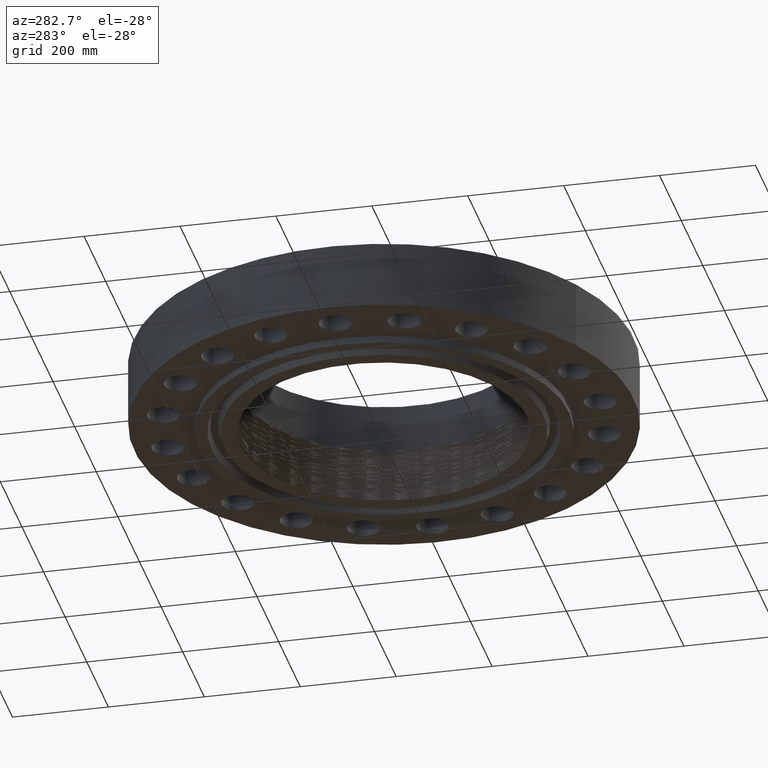
[diagram: clean part render]
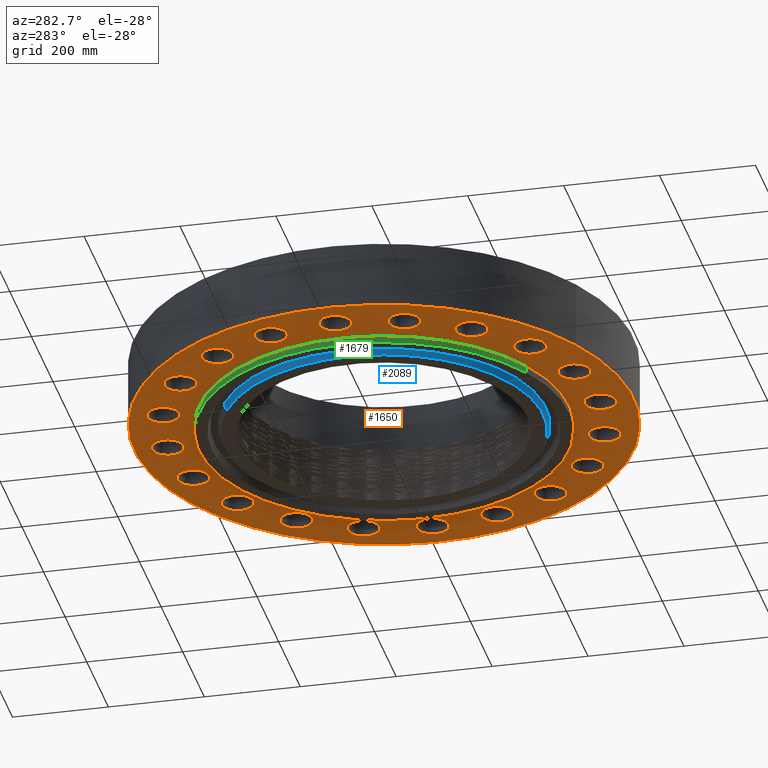
[diagram: same view with three faces highlighted in distinct colors, each labeled with its STEP entity id]
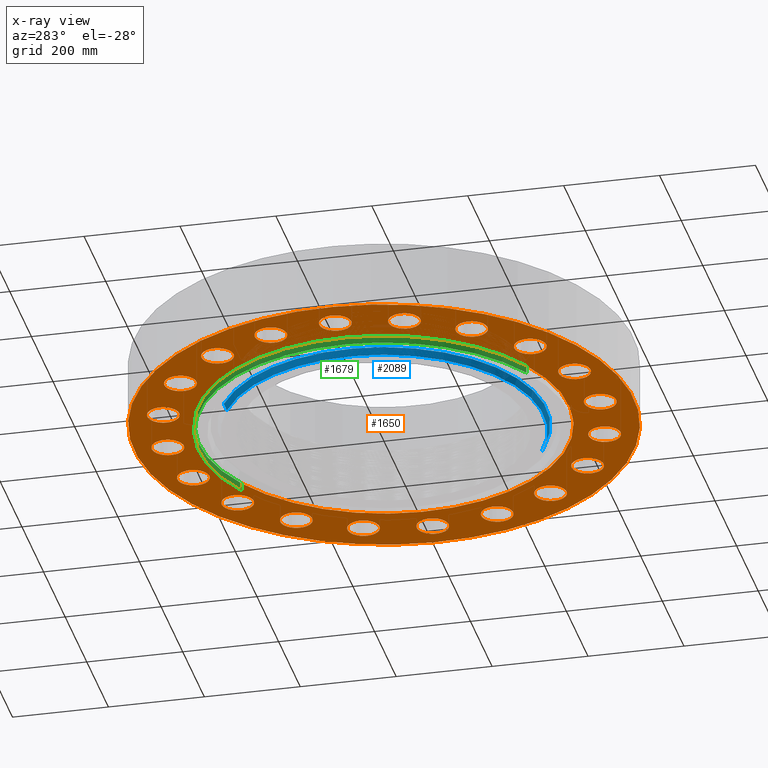
[diagram: x-ray of the same camera — body ghosted, the three highlighted faces saturated]
A machine part, auxiliary view with three faces highlighted in distinct colors.
The next image is the same camera in x-ray (body ghosted, the three faces saturated) — at least one of them is partly hidden behind the body in this view.
Their STEP definitions:

[orange] entity #1650 — the highlighted planar face has unit normal (0, 0, -1).
#448=AXIS2_PLACEMENT_3D('Circle Axis2P3D',#446,#447,$) ;
#474=AXIS2_PLACEMENT_3D('Circle Axis2P3D',#472,#473,$) ;
#505=AXIS2_PLACEMENT_3D('Circle Axis2P3D',#503,#504,$) ;
#531=AXIS2_PLACEMENT_3D('Circle Axis2P3D',#529,#530,$) ;
#562=AXIS2_PLACEMENT_3D('Circle Axis2P3D',#560,#561,$) ;
#588=AXIS2_PLACEMENT_3D('Circle Axis2P3D',#586,#587,$) ;
#619=AXIS2_PLACEMENT_3D('Circle Axis2P3D',#617,#618,$) ;
#645=AXIS2_PLACEMENT_3D('Circle Axis2P3D',#643,#644,$) ;
#676=AXIS2_PLACEMENT_3D('Circle Axis2P3D',#674,#675,$) ;
#702=AXIS2_PLACEMENT_3D('Circle Axis2P3D',#700,#701,$) ;
#733=AXIS2_PLACEMENT_3D('Circle Axis2P3D',#731,#732,$) ;
#759=AXIS2_PLACEMENT_3D('Circle Axis2P3D',#757,#758,$) ;
#790=AXIS2_PLACEMENT_3D('Circle Axis2P3D',#788,#789,$) ;
#816=AXIS2_PLACEMENT_3D('Circle Axis2P3D',#814,#815,$) ;
#847=AXIS2_PLACEMENT_3D('Circle Axis2P3D',#845,#846,$) ;
#873=AXIS2_PLACEMENT_3D('Circle Axis2P3D',#871,#872,$) ;
#904=AXIS2_PLACEMENT_3D('Circle Axis2P3D',#902,#903,$) ;
#930=AXIS2_PLACEMENT_3D('Circle Axis2P3D',#928,#929,$) ;
#961=AXIS2_PLACEMENT_3D('Circle Axis2P3D',#959,#960,$) ;
#987=AXIS2_PLACEMENT_3D('Circle Axis2P3D',#985,#986,$) ;
#1018=AXIS2_PLACEMENT_3D('Circle Axis2P3D',#1016,#1017,$) ;
#1044=AXIS2_PLACEMENT_3D('Circle Axis2P3D',#1042,#1043,$) ;
#1075=AXIS2_PLACEMENT_3D('Circle Axis2P3D',#1073,#1074,$) ;
#1101=AXIS2_PLACEMENT_3D('Circle Axis2P3D',#1099,#1100,$) ;
#1132=AXIS2_PLACEMENT_3D('Circle Axis2P3D',#1130,#1131,$) ;
#1158=AXIS2_PLACEMENT_3D('Circle Axis2P3D',#1156,#1157,$) ;
#1189=AXIS2_PLACEMENT_3D('Circle Axis2P3D',#1187,#1188,$) ;
#1215=AXIS2_PLACEMENT_3D('Circle Axis2P3D',#1213,#1214,$) ;
#1246=AXIS2_PLACEMENT_3D('Circle Axis2P3D',#1244,#1245,$) ;
#1272=AXIS2_PLACEMENT_3D('Circle Axis2P3D',#1270,#1271,$) ;
#1303=AXIS2_PLACEMENT_3D('Circle Axis2P3D',#1301,#1302,$) ;
#1329=AXIS2_PLACEMENT_3D('Circle Axis2P3D',#1327,#1328,$) ;
#1360=AXIS2_PLACEMENT_3D('Circle Axis2P3D',#1358,#1359,$) ;
#1386=AXIS2_PLACEMENT_3D('Circle Axis2P3D',#1384,#1385,$) ;
#1417=AXIS2_PLACEMENT_3D('Circle Axis2P3D',#1415,#1416,$) ;
#1443=AXIS2_PLACEMENT_3D('Circle Axis2P3D',#1441,#1442,$) ;
#1474=AXIS2_PLACEMENT_3D('Circle Axis2P3D',#1472,#1473,$) ;
#1500=AXIS2_PLACEMENT_3D('Circle Axis2P3D',#1498,#1499,$) ;
#1518=AXIS2_PLACEMENT_3D('Plane Axis2P3D',#1515,#1516,#1517) ;
#1522=AXIS2_PLACEMENT_3D('Circle Axis2P3D',#1520,#1521,$) ;
#1531=AXIS2_PLACEMENT_3D('Circle Axis2P3D',#1529,#1530,$) ;
#1540=AXIS2_PLACEMENT_3D('Circle Axis2P3D',#1538,#1539,$) ;
#1549=AXIS2_PLACEMENT_3D('Circle Axis2P3D',#1547,#1548,$) ;
#1558=AXIS2_PLACEMENT_3D('Circle Axis2P3D',#1556,#1557,$) ;
#1567=AXIS2_PLACEMENT_3D('Circle Axis2P3D',#1565,#1566,$) ;
#441=CARTESIAN_POINT('Vertex',(6.38777281745,15.9250526131,0.)) ;
#446=CARTESIAN_POINT('Axis2P3D Location',(5.48505165018,16.8812531643,0.)) ;
#450=CARTESIAN_POINT('Vertex',(4.58233048291,17.8374537155,0.)) ;
#472=CARTESIAN_POINT('Axis2P3D Location',(5.48505165018,16.8812531643,0.)) ;
#498=CARTESIAN_POINT('Vertex',(-1.15402106889,-17.1195554168,0.)) ;
#503=CARTESIAN_POINT('Axis2P3D Location',(1.00563315434E-014,-17.7500000001,0.)) ;
#507=CARTESIAN_POINT('Vertex',(1.15402106889,-18.3804445833,0.)) ;
#529=CARTESIAN_POINT('Axis2P3D Location',(1.00563315434E-014,-17.7500000001,0.)) ;
#555=CARTESIAN_POINT('Vertex',(-4.19269430243,16.6382768574,-3.35689481461E-015)) ;
#560=CARTESIAN_POINT('Axis2P3D Location',(-5.48505165018,16.8812531643,-4.47585975282E-015)) ;
#564=CARTESIAN_POINT('Vertex',(-6.77740899793,17.1242294712,0.)) ;
#586=CARTESIAN_POINT('Axis2P3D Location',(-5.48505165018,16.8812531643,-4.47585975282E-015)) ;
#612=CARTESIAN_POINT('Vertex',(4.19269430243,-16.6382768574,0.)) ;
#617=CARTESIAN_POINT('Axis2P3D Location',(5.48505165018,-16.8812531643,0.)) ;
#621=CARTESIAN_POINT('Vertex',(6.77740899793,-17.1242294712,0.)) ;
#643=CARTESIAN_POINT('Axis2P3D Location',(5.48505165018,-16.8812531643,0.)) ;
#669=CARTESIAN_POINT('Vertex',(-9.1289995432,14.5283278335,0.)) ;
#674=CARTESIAN_POINT('Axis2P3D Location',(-10.4331882282,14.3600516502,0.)) ;
#678=CARTESIAN_POINT('Vertex',(-11.7373769133,14.191775467,0.)) ;
#700=CARTESIAN_POINT('Axis2P3D Location',(-10.4331882282,14.3600516502,0.)) ;
#726=CARTESIAN_POINT('Vertex',(9.1289995432,-14.5283278335,0.)) ;
#731=CARTESIAN_POINT('Axis2P3D Location',(10.4331882282,-14.3600516502,0.)) ;
#735=CARTESIAN_POINT('Vertex',(11.7373769133,-14.191775467,0.)) ;
#757=CARTESIAN_POINT('Axis2P3D Location',(10.4331882282,-14.3600516502,0.)) ;
#783=CARTESIAN_POINT('Vertex',(-13.1716947032,10.9962448564,0.)) ;
#788=CARTESIAN_POINT('Axis2P3D Location',(-14.3600516502,10.4331882282,0.)) ;
#792=CARTESIAN_POINT('Vertex',(-15.5484085972,9.87013160007,0.)) ;
#814=CARTESIAN_POINT('Axis2P3D Location',(-14.3600516502,10.4331882282,0.)) ;
#840=CARTESIAN_POINT('Vertex',(13.1716947032,-10.9962448564,0.)) ;
#845=CARTESIAN_POINT('Axis2P3D Location',(14.3600516502,-10.4331882282,0.)) ;
#849=CARTESIAN_POINT('Vertex',(15.5484085972,-9.87013160007,0.)) ;
#871=CARTESIAN_POINT('Axis2P3D Location',(14.3600516502,-10.4331882282,0.)) ;
#897=CARTESIAN_POINT('Vertex',(-15.9250526131,6.38777281745,-3.35689481461E-015)) ;
#902=CARTESIAN_POINT('Axis2P3D Location',(-16.8812531643,5.48505165018,-4.47585975282E-015)) ;
#906=CARTESIAN_POINT('Vertex',(-17.8374537155,4.58233048291,0.)) ;
#928=CARTESIAN_POINT('Axis2P3D Location',(-16.8812531643,5.48505165018,-4.47585975282E-015)) ;
#954=CARTESIAN_POINT('Vertex',(15.9250526131,-6.38777281745,0.)) ;
#959=CARTESIAN_POINT('Axis2P3D Location',(16.8812531643,-5.48505165018,0.)) ;
#963=CARTESIAN_POINT('Vertex',(17.8374537155,-4.58233048291,0.)) ;
#985=CARTESIAN_POINT('Axis2P3D Location',(16.8812531643,-5.48505165018,0.)) ;
#1011=CARTESIAN_POINT('Vertex',(-17.1195554168,1.15402106889,0.)) ;
#1016=CARTESIAN_POINT('Axis2P3D Location',(-17.7500000001,-1.90257890525E-014,0.)) ;
#1020=CARTESIAN_POINT('Vertex',(-18.3804445833,-1.15402106889,0.)) ;
#1042=CARTESIAN_POINT('Axis2P3D Location',(-17.7500000001,-1.90257890525E-014,0.)) ;
#1068=CARTESIAN_POINT('Vertex',(17.1195554168,-1.15402106889,0.)) ;
#1073=CARTESIAN_POINT('Axis2P3D Location',(17.7500000001,2.79023589527E-015,0.)) ;
#1077=CARTESIAN_POINT('Vertex',(18.3804445833,1.15402106889,0.)) ;
#1099=CARTESIAN_POINT('Axis2P3D Location',(17.7500000001,2.79023589527E-015,0.)) ;
#1125=CARTESIAN_POINT('Vertex',(-16.6382768574,-4.19269430243,-3.35689481461E-015)) ;
#1130=CARTESIAN_POINT('Axis2P3D Location',(-16.8812531643,-5.48505165018,-4.47585975282E-015)) ;
#1134=CARTESIAN_POINT('Vertex',(-17.1242294712,-6.77740899793,0.)) ;
#1156=CARTESIAN_POINT('Axis2P3D Location',(-16.8812531643,-5.48505165018,-4.47585975282E-015)) ;
#1182=CARTESIAN_POINT('Vertex',(16.6382768574,4.19269430243,0.)) ;
#1187=CARTESIAN_POINT('Axis2P3D Location',(16.8812531643,5.48505165018,0.)) ;
#1191=CARTESIAN_POINT('Vertex',(17.1242294712,6.77740899793,0.)) ;
#1213=CARTESIAN_POINT('Axis2P3D Location',(16.8812531643,5.48505165018,0.)) ;
#1239=CARTESIAN_POINT('Vertex',(-14.5283278335,-9.1289995432,0.)) ;
#1244=CARTESIAN_POINT('Axis2P3D Location',(-14.3600516502,-10.4331882282,0.)) ;
#1248=CARTESIAN_POINT('Vertex',(-14.191775467,-11.7373769133,0.)) ;
#1270=CARTESIAN_POINT('Axis2P3D Location',(-14.3600516502,-10.4331882282,0.)) ;
#1296=CARTESIAN_POINT('Vertex',(14.5283278335,9.1289995432,0.)) ;
#1301=CARTESIAN_POINT('Axis2P3D Location',(14.3600516502,10.4331882282,0.)) ;
#1305=CARTESIAN_POINT('Vertex',(14.191775467,11.7373769133,0.)) ;
#1327=CARTESIAN_POINT('Axis2P3D Location',(14.3600516502,10.4331882282,0.)) ;
#1353=CARTESIAN_POINT('Vertex',(-10.9962448564,-13.1716947032,-3.35689481461E-015)) ;
#1358=CARTESIAN_POINT('Axis2P3D Location',(-10.4331882282,-14.3600516502,-4.47585975282E-015)) ;
#1362=CARTESIAN_POINT('Vertex',(-9.87013160007,-15.5484085972,0.)) ;
#1384=CARTESIAN_POINT('Axis2P3D Location',(-10.4331882282,-14.3600516502,-4.47585975282E-015)) ;
#1410=CARTESIAN_POINT('Vertex',(10.9962448564,13.1716947032,-3.35689481461E-015)) ;
#1415=CARTESIAN_POINT('Axis2P3D Location',(10.4331882282,14.3600516502,-4.47585975282E-015)) ;
#1419=CARTESIAN_POINT('Vertex',(9.87013160007,15.5484085972,0.)) ;
#1441=CARTESIAN_POINT('Axis2P3D Location',(10.4331882282,14.3600516502,-4.47585975282E-015)) ;
#1467=CARTESIAN_POINT('Vertex',(-6.38777281745,-15.9250526131,0.)) ;
#1472=CARTESIAN_POINT('Axis2P3D Location',(-5.48505165018,-16.8812531643,0.)) ;
#1476=CARTESIAN_POINT('Vertex',(-4.58233048291,-17.8374537155,0.)) ;
#1498=CARTESIAN_POINT('Axis2P3D Location',(-5.48505165018,-16.8812531643,0.)) ;
#1515=CARTESIAN_POINT('Axis2P3D Location',(0.,15.1875000001,0.)) ;
#1520=CARTESIAN_POINT('Axis2P3D Location',(0.,0.,0.)) ;
#1524=CARTESIAN_POINT('Vertex',(-9.82822354143,-17.9904425188,2.23792987641E-015)) ;
#1526=CARTESIAN_POINT('Vertex',(9.82822354143,17.9904425188,2.23792987641E-015)) ;
#1529=CARTESIAN_POINT('Axis2P3D Location',(0.,0.,0.)) ;
#1538=CARTESIAN_POINT('Axis2P3D Location',(5.59482469102E-016,17.7500000001,0.)) ;
#1542=CARTESIAN_POINT('Vertex',(1.15402106889,17.1195554168,0.)) ;
#1544=CARTESIAN_POINT('Vertex',(-1.15402106889,18.3804445833,0.)) ;
#1547=CARTESIAN_POINT('Axis2P3D Location',(4.19611851827E-016,17.7500000001,0.)) ;
#1556=CARTESIAN_POINT('Axis2P3D Location',(0.,0.,0.)) ;
#1560=CARTESIAN_POINT('Vertex',(7.28127536758,13.3282851588,1.67844740731E-015)) ;
#1562=CARTESIAN_POINT('Vertex',(-7.28127536758,-13.3282851588,1.67844740731E-015)) ;
#1565=CARTESIAN_POINT('Axis2P3D Location',(0.,0.,0.)) ;
#447=DIRECTION('Axis2P3D Direction',(0.,-0.,-0.0393700787402)) ;
#473=DIRECTION('Axis2P3D Direction',(0.,-0.,-0.0393700787402)) ;
#504=DIRECTION('Axis2P3D Direction',(-0.,0.,-0.0393700787402)) ;
#530=DIRECTION('Axis2P3D Direction',(-0.,0.,-0.0393700787402)) ;
#561=DIRECTION('Axis2P3D Direction',(0.,0.,-0.0393700787402)) ;
#587=DIRECTION('Axis2P3D Direction',(0.,0.,-0.0393700787402)) ;
#618=DIRECTION('Axis2P3D Direction',(-0.,0.,-0.0393700787402)) ;
#644=DIRECTION('Axis2P3D Direction',(-0.,0.,-0.0393700787402)) ;
#675=DIRECTION('Axis2P3D Direction',(0.,0.,-0.0393700787402)) ;
#701=DIRECTION('Axis2P3D Direction',(0.,0.,-0.0393700787402)) ;
#732=DIRECTION('Axis2P3D Direction',(-0.,0.,-0.0393700787402)) ;
#758=DIRECTION('Axis2P3D Direction',(-0.,0.,-0.0393700787402)) ;
#789=DIRECTION('Axis2P3D Direction',(0.,0.,-0.0393700787402)) ;
#815=DIRECTION('Axis2P3D Direction',(0.,0.,-0.0393700787402)) ;
#846=DIRECTION('Axis2P3D Direction',(-0.,0.,-0.0393700787402)) ;
#872=DIRECTION('Axis2P3D Direction',(-0.,0.,-0.0393700787402)) ;
#903=DIRECTION('Axis2P3D Direction',(0.,0.,-0.0393700787402)) ;
#929=DIRECTION('Axis2P3D Direction',(0.,0.,-0.0393700787402)) ;
#960=DIRECTION('Axis2P3D Direction',(-0.,0.,-0.0393700787402)) ;
#986=DIRECTION('Axis2P3D Direction',(-0.,0.,-0.0393700787402)) ;
#1017=DIRECTION('Axis2P3D Direction',(0.,0.,-0.0393700787402)) ;
#1043=DIRECTION('Axis2P3D Direction',(0.,0.,-0.0393700787402)) ;
#1074=DIRECTION('Axis2P3D Direction',(0.,-0.,-0.0393700787402)) ;
#1100=DIRECTION('Axis2P3D Direction',(0.,-0.,-0.0393700787402)) ;
#1131=DIRECTION('Axis2P3D Direction',(0.,0.,-0.0393700787402)) ;
#1157=DIRECTION('Axis2P3D Direction',(0.,0.,-0.0393700787402)) ;
#1188=DIRECTION('Axis2P3D Direction',(0.,-0.,-0.0393700787402)) ;
#1214=DIRECTION('Axis2P3D Direction',(0.,-0.,-0.0393700787402)) ;
#1245=DIRECTION('Axis2P3D Direction',(0.,0.,-0.0393700787402)) ;
#1271=DIRECTION('Axis2P3D Direction',(0.,0.,-0.0393700787402)) ;
#1302=DIRECTION('Axis2P3D Direction',(0.,-0.,-0.0393700787402)) ;
#1328=DIRECTION('Axis2P3D Direction',(0.,-0.,-0.0393700787402)) ;
#1359=DIRECTION('Axis2P3D Direction',(0.,0.,-0.0393700787402)) ;
#1385=DIRECTION('Axis2P3D Direction',(0.,0.,-0.0393700787402)) ;
#1416=DIRECTION('Axis2P3D Direction',(0.,-0.,-0.0393700787402)) ;
#1442=DIRECTION('Axis2P3D Direction',(0.,-0.,-0.0393700787402)) ;
#1473=DIRECTION('Axis2P3D Direction',(0.,0.,-0.0393700787402)) ;
#1499=DIRECTION('Axis2P3D Direction',(0.,0.,-0.0393700787402)) ;
#1516=DIRECTION('Axis2P3D Direction',(0.,0.,-0.0393700787402)) ;
#1517=DIRECTION('Axis2P3D XDirection',(0.0393700787402,0.,0.)) ;
#1521=DIRECTION('Axis2P3D Direction',(0.,0.,-0.0393700787402)) ;
#1530=DIRECTION('Axis2P3D Direction',(0.,0.,-0.0393700787402)) ;
#1539=DIRECTION('Axis2P3D Direction',(0.,0.,-0.0393700787402)) ;
#1548=DIRECTION('Axis2P3D Direction',(0.,0.,-0.0393700787402)) ;
#1557=DIRECTION('Axis2P3D Direction',(0.,0.,-0.0393700787402)) ;
#1566=DIRECTION('Axis2P3D Direction',(0.,0.,-0.0393700787402)) ;
#1535=ORIENTED_EDGE('',*,*,#1528,.T.) ;
#1536=ORIENTED_EDGE('',*,*,#1533,.T.) ;
#1553=ORIENTED_EDGE('',*,*,#1546,.F.) ;
#1554=ORIENTED_EDGE('',*,*,#1551,.F.) ;
#1571=ORIENTED_EDGE('',*,*,#1564,.F.) ;
#1572=ORIENTED_EDGE('',*,*,#1569,.F.) ;
#1575=ORIENTED_EDGE('',*,*,#476,.F.) ;
#1576=ORIENTED_EDGE('',*,*,#452,.F.) ;
#1579=ORIENTED_EDGE('',*,*,#1445,.F.) ;
#1580=ORIENTED_EDGE('',*,*,#1421,.F.) ;
#1583=ORIENTED_EDGE('',*,*,#1331,.F.) ;
#1584=ORIENTED_EDGE('',*,*,#1307,.F.) ;
#1587=ORIENTED_EDGE('',*,*,#1217,.F.) ;
#1588=ORIENTED_EDGE('',*,*,#1193,.F.) ;
#1591=ORIENTED_EDGE('',*,*,#1103,.F.) ;
#1592=ORIENTED_EDGE('',*,*,#1079,.F.) ;
#1595=ORIENTED_EDGE('',*,*,#989,.F.) ;
#1596=ORIENTED_EDGE('',*,*,#965,.F.) ;
#1599=ORIENTED_EDGE('',*,*,#875,.F.) ;
#1600=ORIENTED_EDGE('',*,*,#851,.F.) ;
#1603=ORIENTED_EDGE('',*,*,#761,.F.) ;
#1604=ORIENTED_EDGE('',*,*,#737,.F.) ;
#1607=ORIENTED_EDGE('',*,*,#647,.F.) ;
#1608=ORIENTED_EDGE('',*,*,#623,.F.) ;
#1611=ORIENTED_EDGE('',*,*,#533,.F.) ;
#1612=ORIENTED_EDGE('',*,*,#509,.F.) ;
#1615=ORIENTED_EDGE('',*,*,#1502,.F.) ;
#1616=ORIENTED_EDGE('',*,*,#1478,.F.) ;
#1619=ORIENTED_EDGE('',*,*,#1388,.F.) ;
#1620=ORIENTED_EDGE('',*,*,#1364,.F.) ;
#1623=ORIENTED_EDGE('',*,*,#1274,.F.) ;
#1624=ORIENTED_EDGE('',*,*,#1250,.F.) ;
#1627=ORIENTED_EDGE('',*,*,#1160,.F.) ;
#1628=ORIENTED_EDGE('',*,*,#1136,.F.) ;
#1631=ORIENTED_EDGE('',*,*,#1046,.F.) ;
#1632=ORIENTED_EDGE('',*,*,#1022,.F.) ;
#1635=ORIENTED_EDGE('',*,*,#932,.F.) ;
#1636=ORIENTED_EDGE('',*,*,#908,.F.) ;
#1639=ORIENTED_EDGE('',*,*,#818,.F.) ;
#1640=ORIENTED_EDGE('',*,*,#794,.F.) ;
#1643=ORIENTED_EDGE('',*,*,#704,.F.) ;
#1644=ORIENTED_EDGE('',*,*,#680,.F.) ;
#1647=ORIENTED_EDGE('',*,*,#590,.F.) ;
#1648=ORIENTED_EDGE('',*,*,#566,.F.) ;
#1555=FACE_BOUND('',#1552,.T.) ;
#1573=FACE_BOUND('',#1570,.T.) ;
#1577=FACE_BOUND('',#1574,.T.) ;
#1581=FACE_BOUND('',#1578,.T.) ;
#1585=FACE_BOUND('',#1582,.T.) ;
#1589=FACE_BOUND('',#1586,.T.) ;
#1593=FACE_BOUND('',#1590,.T.) ;
#1597=FACE_BOUND('',#1594,.T.) ;
#1601=FACE_BOUND('',#1598,.T.) ;
#1605=FACE_BOUND('',#1602,.T.) ;
#1609=FACE_BOUND('',#1606,.T.) ;
#1613=FACE_BOUND('',#1610,.T.) ;
#1617=FACE_BOUND('',#1614,.T.) ;
#1621=FACE_BOUND('',#1618,.T.) ;
#1625=FACE_BOUND('',#1622,.T.) ;
#1629=FACE_BOUND('',#1626,.T.) ;
#1633=FACE_BOUND('',#1630,.T.) ;
#1637=FACE_BOUND('',#1634,.T.) ;
#1641=FACE_BOUND('',#1638,.T.) ;
#1645=FACE_BOUND('',#1642,.T.) ;
#1649=FACE_BOUND('',#1646,.T.) ;
#1650=ADVANCED_FACE('PartBody',(#1537,#1555,#1573,#1577,#1581,#1585,#1589,#1593,#1597,#1601,#1605,#1609,#1613,#1617,#1621,#1625,#1629,#1633,#1637,#1641,#1645,#1649),#1519,.T.) ;
#449=CIRCLE('generated circle',#448,1.31500000001) ;
#475=CIRCLE('generated circle',#474,1.31500000001) ;
#506=CIRCLE('generated circle',#505,1.31500000001) ;
#532=CIRCLE('generated circle',#531,1.31500000001) ;
#563=CIRCLE('generated circle',#562,1.31500000001) ;
#589=CIRCLE('generated circle',#588,1.31500000001) ;
#620=CIRCLE('generated circle',#619,1.31500000001) ;
#646=CIRCLE('generated circle',#645,1.31500000001) ;
#677=CIRCLE('generated circle',#676,1.31500000001) ;
#703=CIRCLE('generated circle',#702,1.31500000001) ;
#734=CIRCLE('generated circle',#733,1.31500000001) ;
#760=CIRCLE('generated circle',#759,1.31500000001) ;
#791=CIRCLE('generated circle',#790,1.31500000001) ;
#817=CIRCLE('generated circle',#816,1.31500000001) ;
#848=CIRCLE('generated circle',#847,1.31500000001) ;
#874=CIRCLE('generated circle',#873,1.31500000001) ;
#905=CIRCLE('generated circle',#904,1.31500000001) ;
#931=CIRCLE('generated circle',#930,1.31500000001) ;
#962=CIRCLE('generated circle',#961,1.31500000001) ;
#988=CIRCLE('generated circle',#987,1.31500000001) ;
#1019=CIRCLE('generated circle',#1018,1.31500000001) ;
#1045=CIRCLE('generated circle',#1044,1.31500000001) ;
#1076=CIRCLE('generated circle',#1075,1.31500000001) ;
#1102=CIRCLE('generated circle',#1101,1.31500000001) ;
#1133=CIRCLE('generated circle',#1132,1.31500000001) ;
#1159=CIRCLE('generated circle',#1158,1.31500000001) ;
#1190=CIRCLE('generated circle',#1189,1.31500000001) ;
#1216=CIRCLE('generated circle',#1215,1.31500000001) ;
#1247=CIRCLE('generated circle',#1246,1.31500000001) ;
#1273=CIRCLE('generated circle',#1272,1.31500000001) ;
#1304=CIRCLE('generated circle',#1303,1.31500000001) ;
#1330=CIRCLE('generated circle',#1329,1.31500000001) ;
#1361=CIRCLE('generated circle',#1360,1.31500000001) ;
#1387=CIRCLE('generated circle',#1386,1.31500000001) ;
#1418=CIRCLE('generated circle',#1417,1.31500000001) ;
#1444=CIRCLE('generated circle',#1443,1.31500000001) ;
#1475=CIRCLE('generated circle',#1474,1.31500000001) ;
#1501=CIRCLE('generated circle',#1500,1.31500000001) ;
#1523=CIRCLE('generated circle',#1522,20.5000000001) ;
#1532=CIRCLE('generated circle',#1531,20.5000000001) ;
#1541=CIRCLE('generated circle',#1540,1.31500000001) ;
#1550=CIRCLE('generated circle',#1549,1.31500000001) ;
#1559=CIRCLE('generated circle',#1558,15.1875000001) ;
#1568=CIRCLE('generated circle',#1567,15.1875000001) ;
#452=EDGE_CURVE('',#442,#451,#449,.T.) ;
#476=EDGE_CURVE('',#451,#442,#475,.T.) ;
#509=EDGE_CURVE('',#499,#508,#506,.T.) ;
#533=EDGE_CURVE('',#508,#499,#532,.T.) ;
#566=EDGE_CURVE('',#556,#565,#563,.T.) ;
#590=EDGE_CURVE('',#565,#556,#589,.T.) ;
#623=EDGE_CURVE('',#613,#622,#620,.T.) ;
#647=EDGE_CURVE('',#622,#613,#646,.T.) ;
#680=EDGE_CURVE('',#670,#679,#677,.T.) ;
#704=EDGE_CURVE('',#679,#670,#703,.T.) ;
#737=EDGE_CURVE('',#727,#736,#734,.T.) ;
#761=EDGE_CURVE('',#736,#727,#760,.T.) ;
#794=EDGE_CURVE('',#784,#793,#791,.T.) ;
#818=EDGE_CURVE('',#793,#784,#817,.T.) ;
#851=EDGE_CURVE('',#841,#850,#848,.T.) ;
#875=EDGE_CURVE('',#850,#841,#874,.T.) ;
#908=EDGE_CURVE('',#898,#907,#905,.T.) ;
#932=EDGE_CURVE('',#907,#898,#931,.T.) ;
#965=EDGE_CURVE('',#955,#964,#962,.T.) ;
#989=EDGE_CURVE('',#964,#955,#988,.T.) ;
#1022=EDGE_CURVE('',#1012,#1021,#1019,.T.) ;
#1046=EDGE_CURVE('',#1021,#1012,#1045,.T.) ;
#1079=EDGE_CURVE('',#1069,#1078,#1076,.T.) ;
#1103=EDGE_CURVE('',#1078,#1069,#1102,.T.) ;
#1136=EDGE_CURVE('',#1126,#1135,#1133,.T.) ;
#1160=EDGE_CURVE('',#1135,#1126,#1159,.T.) ;
#1193=EDGE_CURVE('',#1183,#1192,#1190,.T.) ;
#1217=EDGE_CURVE('',#1192,#1183,#1216,.T.) ;
#1250=EDGE_CURVE('',#1240,#1249,#1247,.T.) ;
#1274=EDGE_CURVE('',#1249,#1240,#1273,.T.) ;
#1307=EDGE_CURVE('',#1297,#1306,#1304,.T.) ;
#1331=EDGE_CURVE('',#1306,#1297,#1330,.T.) ;
#1364=EDGE_CURVE('',#1354,#1363,#1361,.T.) ;
#1388=EDGE_CURVE('',#1363,#1354,#1387,.T.) ;
#1421=EDGE_CURVE('',#1411,#1420,#1418,.T.) ;
#1445=EDGE_CURVE('',#1420,#1411,#1444,.T.) ;
#1478=EDGE_CURVE('',#1468,#1477,#1475,.T.) ;
#1502=EDGE_CURVE('',#1477,#1468,#1501,.T.) ;
#1528=EDGE_CURVE('',#1525,#1527,#1523,.T.) ;
#1533=EDGE_CURVE('',#1527,#1525,#1532,.T.) ;
#1546=EDGE_CURVE('',#1543,#1545,#1541,.T.) ;
#1551=EDGE_CURVE('',#1545,#1543,#1550,.T.) ;
#1564=EDGE_CURVE('',#1561,#1563,#1559,.T.) ;
#1569=EDGE_CURVE('',#1563,#1561,#1568,.T.) ;
#1534=EDGE_LOOP('',(#1535,#1536)) ;
#1552=EDGE_LOOP('',(#1553,#1554)) ;
#1570=EDGE_LOOP('',(#1571,#1572)) ;
#1574=EDGE_LOOP('',(#1575,#1576)) ;
#1578=EDGE_LOOP('',(#1579,#1580)) ;
#1582=EDGE_LOOP('',(#1583,#1584)) ;
#1586=EDGE_LOOP('',(#1587,#1588)) ;
#1590=EDGE_LOOP('',(#1591,#1592)) ;
#1594=EDGE_LOOP('',(#1595,#1596)) ;
#1598=EDGE_LOOP('',(#1599,#1600)) ;
#1602=EDGE_LOOP('',(#1603,#1604)) ;
#1606=EDGE_LOOP('',(#1607,#1608)) ;
#1610=EDGE_LOOP('',(#1611,#1612)) ;
#1614=EDGE_LOOP('',(#1615,#1616)) ;
#1618=EDGE_LOOP('',(#1619,#1620)) ;
#1622=EDGE_LOOP('',(#1623,#1624)) ;
#1626=EDGE_LOOP('',(#1627,#1628)) ;
#1630=EDGE_LOOP('',(#1631,#1632)) ;
#1634=EDGE_LOOP('',(#1635,#1636)) ;
#1638=EDGE_LOOP('',(#1639,#1640)) ;
#1642=EDGE_LOOP('',(#1643,#1644)) ;
#1646=EDGE_LOOP('',(#1647,#1648)) ;
#1537=FACE_OUTER_BOUND('',#1534,.T.) ;
#1519=PLANE('',#1518) ;
#442=VERTEX_POINT('',#441) ;
#451=VERTEX_POINT('',#450) ;
#499=VERTEX_POINT('',#498) ;
#508=VERTEX_POINT('',#507) ;
#556=VERTEX_POINT('',#555) ;
#565=VERTEX_POINT('',#564) ;
#613=VERTEX_POINT('',#612) ;
#622=VERTEX_POINT('',#621) ;
#670=VERTEX_POINT('',#669) ;
#679=VERTEX_POINT('',#678) ;
#727=VERTEX_POINT('',#726) ;
#736=VERTEX_POINT('',#735) ;
#784=VERTEX_POINT('',#783) ;
#793=VERTEX_POINT('',#792) ;
#841=VERTEX_POINT('',#840) ;
#850=VERTEX_POINT('',#849) ;
#898=VERTEX_POINT('',#897) ;
#907=VERTEX_POINT('',#906) ;
#955=VERTEX_POINT('',#954) ;
#964=VERTEX_POINT('',#963) ;
#1012=VERTEX_POINT('',#1011) ;
#1021=VERTEX_POINT('',#1020) ;
#1069=VERTEX_POINT('',#1068) ;
#1078=VERTEX_POINT('',#1077) ;
#1126=VERTEX_POINT('',#1125) ;
#1135=VERTEX_POINT('',#1134) ;
#1183=VERTEX_POINT('',#1182) ;
#1192=VERTEX_POINT('',#1191) ;
#1240=VERTEX_POINT('',#1239) ;
#1249=VERTEX_POINT('',#1248) ;
#1297=VERTEX_POINT('',#1296) ;
#1306=VERTEX_POINT('',#1305) ;
#1354=VERTEX_POINT('',#1353) ;
#1363=VERTEX_POINT('',#1362) ;
#1411=VERTEX_POINT('',#1410) ;
#1420=VERTEX_POINT('',#1419) ;
#1468=VERTEX_POINT('',#1467) ;
#1477=VERTEX_POINT('',#1476) ;
#1525=VERTEX_POINT('',#1524) ;
#1527=VERTEX_POINT('',#1526) ;
#1543=VERTEX_POINT('',#1542) ;
#1545=VERTEX_POINT('',#1544) ;
#1561=VERTEX_POINT('',#1560) ;
#1563=VERTEX_POINT('',#1562) ;

[blue] entity #2089 — the highlighted conical surface has half-angle 23 deg.
#211=AXIS2_PLACEMENT_3D('Circle Axis2P3D',#209,#210,$) ;
#2051=AXIS2_PLACEMENT_3D('Circle Axis2P3D',#2049,#2050,$) ;
#2064=AXIS2_PLACEMENT_3D('Cone Axis2P3D',#2061,#2062,#2063) ;
#204=CARTESIAN_POINT('Vertex',(-6.27747814612,11.4908466698,-0.625000000003)) ;
#206=CARTESIAN_POINT('Vertex',(6.27747814612,-11.4908466698,-0.625000000003)) ;
#209=CARTESIAN_POINT('Axis2P3D Location',(1.1189649382E-015,-5.59482469102E-016,-0.625000000003)) ;
#2027=CARTESIAN_POINT('Vertex',(6.39303804879,-11.7023776528,-0.0571494201479)) ;
#2034=CARTESIAN_POINT('Vertex',(-6.39303804879,11.7023776528,-0.0571494201479)) ;
#2049=CARTESIAN_POINT('Axis2P3D Location',(0.,0.,-0.0571494201479)) ;
#2061=CARTESIAN_POINT('Axis2P3D Location',(0.,0.,-0.685000000003)) ;
#2066=CARTESIAN_POINT('Line Origine',(-6.33525809746,11.5966121613,-0.341074710075)) ;
#2071=CARTESIAN_POINT('Line Origine',(6.33525809746,-11.5966121613,-0.341074710075)) ;
#210=DIRECTION('Axis2P3D Direction',(0.,0.,-0.0393700787402)) ;
#2050=DIRECTION('Axis2P3D Direction',(0.,0.,0.0393700787402)) ;
#2062=DIRECTION('Axis2P3D Direction',(0.,0.,0.0393700787402)) ;
#2063=DIRECTION('Axis2P3D XDirection',(-0.0188750212049,0.0345504945626,0.)) ;
#2067=DIRECTION('Vector Direction',(-0.00737505833565,0.0134999537303,0.0362403485611)) ;
#2072=DIRECTION('Vector Direction',(0.00737505833565,-0.0134999537303,0.0362403485611)) ;
#2068=VECTOR('Line Direction',#2067,0.0393700787402) ;
#2073=VECTOR('Line Direction',#2072,0.0393700787402) ;
#2084=ORIENTED_EDGE('',*,*,#2075,.F.) ;
#2085=ORIENTED_EDGE('',*,*,#2053,.F.) ;
#2086=ORIENTED_EDGE('',*,*,#2070,.T.) ;
#2087=ORIENTED_EDGE('',*,*,#213,.F.) ;
#2089=ADVANCED_FACE('PartBody',(#2088),#2065,.T.) ;
#212=CIRCLE('generated circle',#211,13.0937500001) ;
#2052=CIRCLE('generated circle',#2051,13.3347882706) ;
#2065=CONICAL_SURFACE('Cone',#2064,13.0682815111,0.401425727959) ;
#213=EDGE_CURVE('',#207,#205,#212,.T.) ;
#2053=EDGE_CURVE('',#2035,#2028,#2052,.T.) ;
#2070=EDGE_CURVE('',#2035,#205,#2069,.F.) ;
#2075=EDGE_CURVE('',#2028,#207,#2074,.F.) ;
#2083=EDGE_LOOP('',(#2084,#2085,#2086,#2087)) ;
#2088=FACE_OUTER_BOUND('',#2083,.T.) ;
#2069=LINE('Line',#2066,#2068) ;
#2074=LINE('Line',#2071,#2073) ;
#205=VERTEX_POINT('',#204) ;
#207=VERTEX_POINT('',#206) ;
#2028=VERTEX_POINT('',#2027) ;
#2035=VERTEX_POINT('',#2034) ;

[green] entity #1679 — the highlighted cylindrical surface (partial cylindrical patch) has radius 385.762 mm, axis along (0, 0, -1).
#406=AXIS2_PLACEMENT_3D('Circle Axis2P3D',#404,#405,$) ;
#1567=AXIS2_PLACEMENT_3D('Circle Axis2P3D',#1565,#1566,$) ;
#1654=AXIS2_PLACEMENT_3D('Cylinder Axis2P3D',#1651,#1652,#1653) ;
#399=CARTESIAN_POINT('Vertex',(7.28127536758,13.3282851588,-0.625000000003)) ;
#401=CARTESIAN_POINT('Vertex',(-7.28127536758,-13.3282851588,-0.625000000003)) ;
#404=CARTESIAN_POINT('Axis2P3D Location',(0.,0.,-0.625000000003)) ;
#1560=CARTESIAN_POINT('Vertex',(7.28127536758,13.3282851588,1.67844740731E-015)) ;
#1562=CARTESIAN_POINT('Vertex',(-7.28127536758,-13.3282851588,1.67844740731E-015)) ;
#1565=CARTESIAN_POINT('Axis2P3D Location',(0.,0.,0.)) ;
#1651=CARTESIAN_POINT('Axis2P3D Location',(0.,0.,3.68750000001)) ;
#1656=CARTESIAN_POINT('Line Origine',(7.28127536758,13.3282851588,-0.312500000001)) ;
#1661=CARTESIAN_POINT('Line Origine',(-7.28127536758,-13.3282851588,-0.312500000001)) ;
#405=DIRECTION('Axis2P3D Direction',(0.,0.,-0.0393700787402)) ;
#1566=DIRECTION('Axis2P3D Direction',(0.,0.,-0.0393700787402)) ;
#1652=DIRECTION('Axis2P3D Direction',(0.,0.,-0.0393700787402)) ;
#1653=DIRECTION('Axis2P3D XDirection',(-0.0188750212049,-0.0345504945626,0.)) ;
#1657=DIRECTION('Vector Direction',(0.,0.,-0.0393700787402)) ;
#1662=DIRECTION('Vector Direction',(0.,0.,-0.0393700787402)) ;
#1658=VECTOR('Line Direction',#1657,0.0393700787402) ;
#1663=VECTOR('Line Direction',#1662,0.0393700787402) ;
#1674=ORIENTED_EDGE('',*,*,#408,.F.) ;
#1675=ORIENTED_EDGE('',*,*,#1665,.T.) ;
#1676=ORIENTED_EDGE('',*,*,#1569,.T.) ;
#1677=ORIENTED_EDGE('',*,*,#1660,.F.) ;
#1679=ADVANCED_FACE('PartBody',(#1678),#1655,.T.) ;
#407=CIRCLE('generated circle',#406,15.1875000001) ;
#1568=CIRCLE('generated circle',#1567,15.1875000001) ;
#1655=CYLINDRICAL_SURFACE('generated cylinder',#1654,15.1875000001) ;
#408=EDGE_CURVE('',#402,#400,#407,.T.) ;
#1569=EDGE_CURVE('',#1563,#1561,#1568,.T.) ;
#1660=EDGE_CURVE('',#400,#1561,#1659,.F.) ;
#1665=EDGE_CURVE('',#402,#1563,#1664,.F.) ;
#1673=EDGE_LOOP('',(#1674,#1675,#1676,#1677)) ;
#1678=FACE_OUTER_BOUND('',#1673,.T.) ;
#1659=LINE('Line',#1656,#1658) ;
#1664=LINE('Line',#1661,#1663) ;
#400=VERTEX_POINT('',#399) ;
#402=VERTEX_POINT('',#401) ;
#1561=VERTEX_POINT('',#1560) ;
#1563=VERTEX_POINT('',#1562) ;